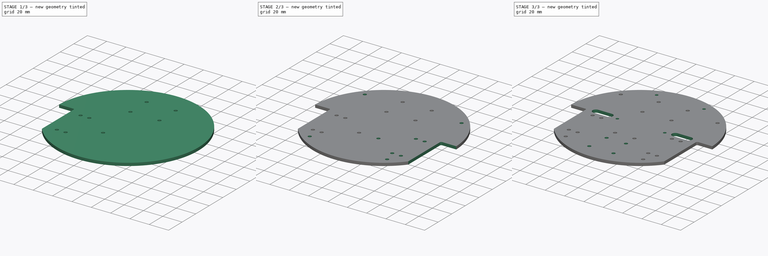
[diagram: build sequence overview — one tinted view per stage of 3, left to right]
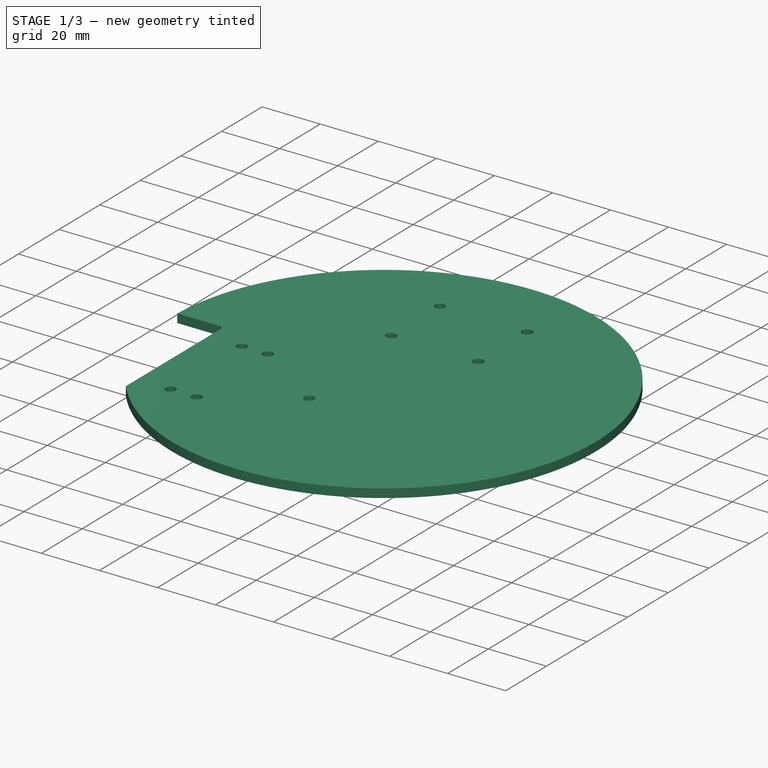
[diagram: stage 1 of 3 — iso view after this stage's code; geometry added in this stage tinted green]
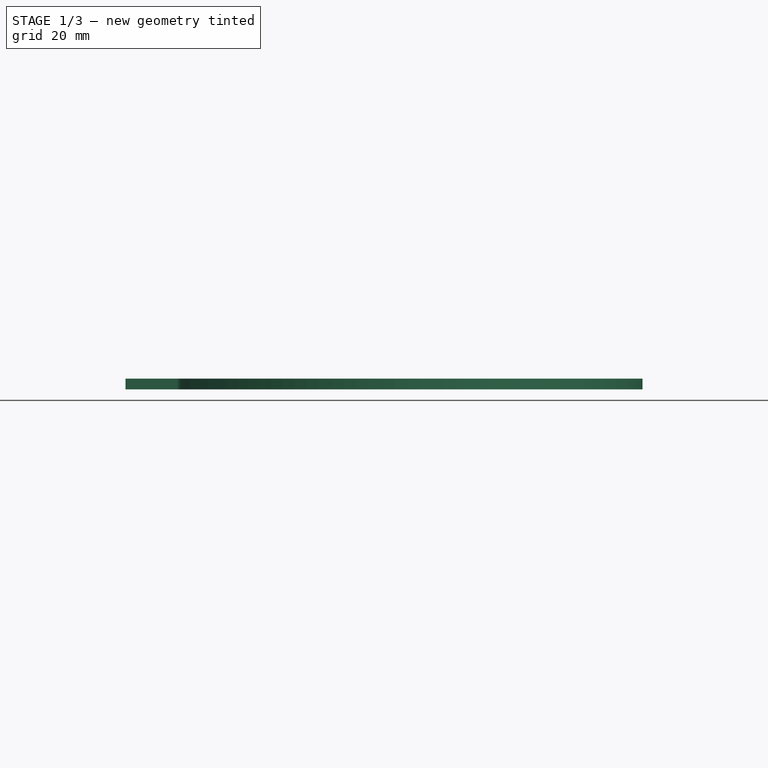
[diagram: stage 1 of 3 — front view after this stage's code; geometry added in this stage tinted green]
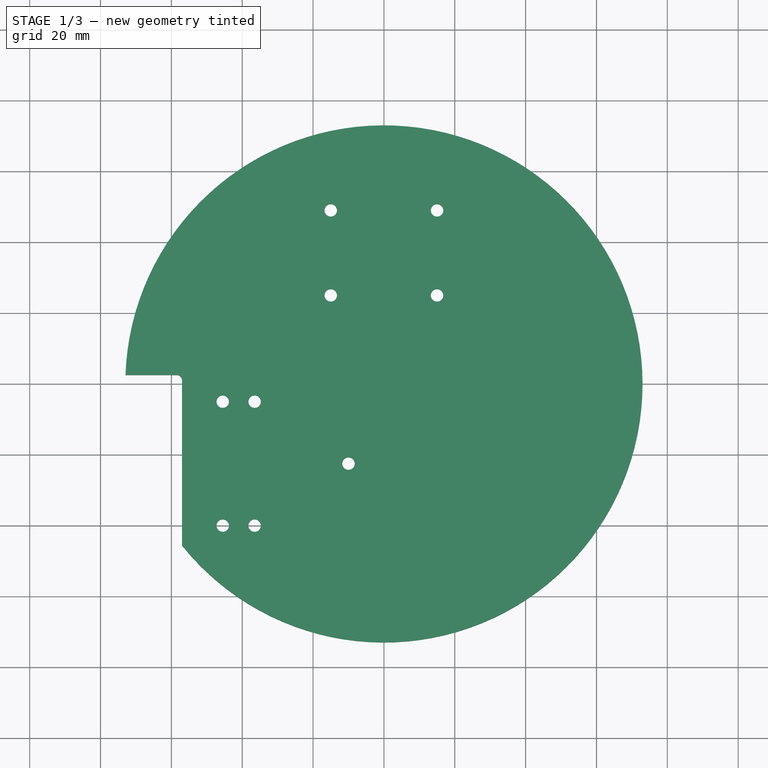
[diagram: stage 1 of 3 — top view after this stage's code; geometry added in this stage tinted green]
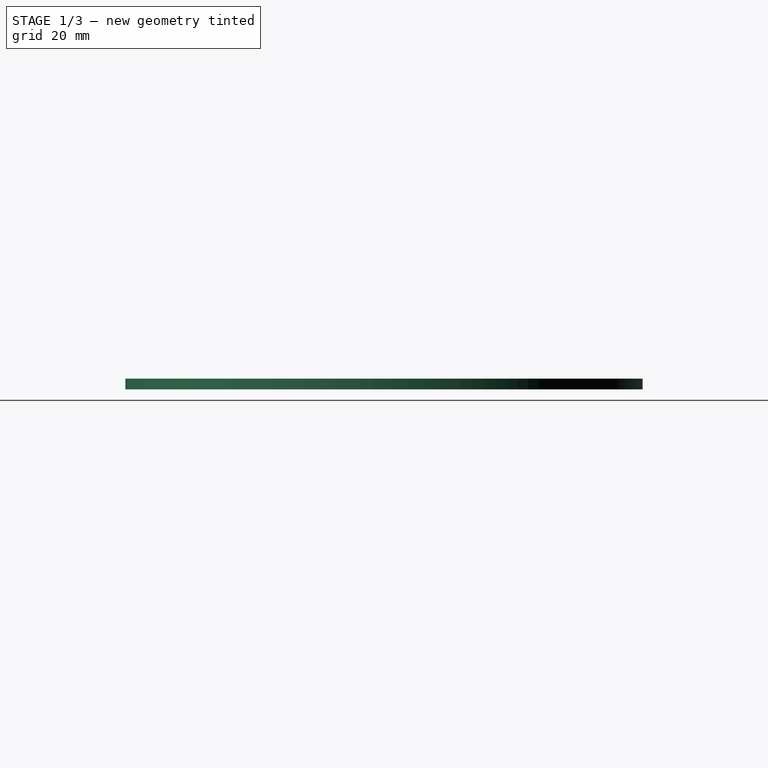
[diagram: stage 1 of 3 — right view after this stage's code; geometry added in this stage tinted green]
FCSTD DOCUMENT  (FreeCAD 0.17R13541 (Git))
Label: Minirobots_2-plate
License: All rights reserved
LicenseURL: http://en.wikipedia.org/wiki/All_rights_reserved
objects: Sketcher::SketchObject×5, PartDesign::Pocket×4, PartDesign::Pad×1, PartDesign::Mirrored×1, TechDraw::DrawSVGTemplate×1, PartDesign::Body×1, TechDraw::DrawViewPart×1, TechDraw::DrawPage×1
note: 17 computed .brp shape members not serialized (recipe doc carries the construction recipe); baked Part::Feature solids carry a one-line shape summary decoded from their .brp

FEATURE [Sketcher::SketchObject] Sketch
  MapMode = 5
  Support = -> [XY_Plane]
  sketch-geometry (12):
    g0: Circle CenterX=0 CenterY=0 CenterZ=0 NormalX=0 NormalY=0 NormalZ=1 AngleXU=0 Radius=73
    g1: Circle [constr] CenterX=0 CenterY=37 CenterZ=0 NormalX=0 NormalY=0 NormalZ=1 AngleXU=0 Radius=32
    g2: LineSegment [constr] StartX=-15 StartY=49 StartZ=0 EndX=15 EndY=49 EndZ=0
    g3: LineSegment [constr] StartX=15 StartY=49 StartZ=0 EndX=15 EndY=25 EndZ=0
    g4: LineSegment [constr] StartX=15 StartY=25 StartZ=0 EndX=-15 EndY=25 EndZ=0
    g5: LineSegment [constr] StartX=-15 StartY=25 StartZ=0 EndX=-15 EndY=49 EndZ=0
    g6: LineSegment [constr] StartX=-15 StartY=25 StartZ=0 EndX=0 EndY=37 EndZ=0
    g7: LineSegment [constr] StartX=0 StartY=37 StartZ=0 EndX=15 EndY=49 EndZ=0
    g8: Circle CenterX=-15 CenterY=49 CenterZ=0 NormalX=0 NormalY=0 NormalZ=1 AngleXU=0 Radius=1.75
    g9: Circle CenterX=15 CenterY=49 CenterZ=0 NormalX=0 NormalY=0 NormalZ=1 AngleXU=0 Radius=1.75
    g10: Circle CenterX=15 CenterY=25 CenterZ=0 NormalX=0 NormalY=0 NormalZ=1 AngleXU=0 Radius=1.75
    g11: Circle CenterX=-15 CenterY=25 CenterZ=0 NormalX=0 NormalY=0 NormalZ=1 AngleXU=0 Radius=1.75
  constraints (30):
    c: Coincident(g0,g-1)
    c: PointOnObject(g1,g-2)
    c: Radius(g0) = 73
    c: Radius(g1) = 32
    c: Coincident(g2,g3)
    c: Coincident(g3,g4)
    c: Coincident(g4,g5)
    c: Coincident(g5,g2)
    c: Horizontal(g2)
    c: Horizontal(g4)
    c: Vertical(g3)
    c: Vertical(g5)
    c: Symmetric(g2,g2,g-2)
    c: Coincident(g4,g6)
    c: Coincident(g6,g1)
    c: Coincident(g6,g7)
    c: Coincident(g7,g2)
    c: PointOnObject(g4,g7)
    c: Equal(g6,g7)
    c: DistanceY(g3,g3) = 24
    c: DistanceX(g4,g4) = 30
    c: DistanceY(g1) = 37
    c: Coincident(g8,g2)
    c: Coincident(g9,g2)
    c: Coincident(g10,g3)
    c: Coincident(g11,g4)
    c: Equal(g8,g11)
    c: Equal(g11,g10)
    c: Equal(g10,g9)
    c: Radius(g9) = 1.75
FEATURE [PartDesign::Pad] Pad
  Length = 3
  Length2 = 100
  Profile = -> Sketch
  Type = 0
FEATURE [Sketcher::SketchObject] Sketch001
  MapMode = 5
  Placement = pos=(0,0,3) rot=(0,0,1;0rad)
  Support = -> [Pad]
  sketch-geometry (19):
    g0: LineSegment StartX=-77 StartY=2.5 StartZ=0 EndX=-58.5 EndY=2.5 EndZ=0
    g1: LineSegment StartX=-57 StartY=1 StartZ=0 EndX=-57 EndY=-47.5 EndZ=0
    g2: LineSegment StartX=-57 StartY=-47.5 StartZ=0 EndX=-77 EndY=-47.5 EndZ=0
    g3: LineSegment StartX=-77 StartY=-47.5 StartZ=0 EndX=-77 EndY=2.5 EndZ=0
    g4: ArcOfCircle CenterX=-58.5 CenterY=1 CenterZ=0 NormalX=0 NormalY=0 NormalZ=1 AngleXU=0 Radius=1.5 StartAngle=0 EndAngle=1.5708
    g5: LineSegment [constr] StartX=-45.5 StartY=-5 StartZ=0 EndX=-36.5 EndY=-5 EndZ=0
    g6: LineSegment [constr] StartX=-36.5 StartY=-5 StartZ=0 EndX=-36.5 EndY=-40 EndZ=0
    g7: LineSegment [constr] StartX=-36.5 StartY=-40 StartZ=0 EndX=-45.5 EndY=-40 EndZ=0
    g8: LineSegment [constr] StartX=-45.5 StartY=-40 StartZ=0 EndX=-45.5 EndY=-5 EndZ=0
    g9: Circle CenterX=-45.5 CenterY=-5 CenterZ=0 NormalX=0 NormalY=0 NormalZ=1 AngleXU=0 Radius=1.75
    g10: Circle CenterX=-36.5 CenterY=-5 CenterZ=0 NormalX=0 NormalY=0 NormalZ=1 AngleXU=0 Radius=1.75
    g11: Circle CenterX=-45.5 CenterY=-40 CenterZ=0 NormalX=0 NormalY=0 NormalZ=1 AngleXU=0 Radius=1.75
    g12: Circle CenterX=-36.5 CenterY=-40 CenterZ=0 NormalX=0 NormalY=0 NormalZ=1 AngleXU=0 Radius=1.75
    g13: LineSegment [constr] StartX=-54.75 StartY=14.5 StartZ=0 EndX=-27.25 EndY=14.5 EndZ=0
    g14: LineSegment [constr] StartX=-27.25 StartY=14.5 StartZ=0 EndX=-27.25 EndY=-43 EndZ=0
    g15: LineSegment [constr] StartX=-27.25 StartY=-43 StartZ=0 EndX=-54.75 EndY=-43 EndZ=0
    g16: LineSegment [constr] StartX=-54.75 StartY=-43 StartZ=0 EndX=-54.75 EndY=14.5 EndZ=0
    g17: Circle [constr] CenterX=0 CenterY=0 CenterZ=0 NormalX=0 NormalY=0 NormalZ=1 AngleXU=0 Radius=70
    g18: Circle CenterX=-10 CenterY=-22.5 CenterZ=0 NormalX=0 NormalY=0 NormalZ=1 AngleXU=0 Radius=1.75
  constraints (51):
    c: Coincident(g1,g2)
    c: Coincident(g2,g3)
    c: Coincident(g3,g0)
    c: Horizontal(g0)
    c: Horizontal(g2)
    c: Vertical(g1)
    c: Vertical(g3)
    c: Tangent(g0,g4) = 1.5708
    c: Tangent(g1,g4) = 1.5708
    c: Coincident(g5,g6)
    c: Coincident(g6,g7)
    c: Coincident(g7,g8)
    c: Coincident(g8,g5)
    c: Horizontal(g5)
    c: Horizontal(g7)
    c: Vertical(g6)
    c: Vertical(g8)
    c: DistanceX(g5,g5) = 9
    c: DistanceY(g6,g6) = 35
    c: DistanceY(g3,g3) = 50
    c: Radius(g4) = 1.5
    c: DistanceX(g2,g2) = 20
    c: Coincident(g9,g5)
    c: Coincident(g10,g5)
    c: Coincident(g11,g7)
    c: Coincident(g12,g6)
    c: Equal(g9,g11)
    c: Equal(g11,g12)
    c: Equal(g10,g9)
    c: Radius(g10) = 1.75
    c: DistanceY(g5,g-1) = 5
    c: DistanceY(g1,g7) = 7.5
    c: DistanceX(g1,g-1) = 57
    c: DistanceX(g5) = -36.5
    c: Coincident(g13,g14)
    c: Coincident(g14,g15)
    c: Coincident(g15,g16)
    c: Coincident(g16,g13)
    c: Horizontal(g13)
    c: Horizontal(g15)
    c: Vertical(g14)
    c: Vertical(g16)
    c: DistanceX(g13,g13) = 27.5
    c: DistanceY(g14,g14) = 57.5
    c: Coincident(g17,g-1)
    c: Radius(g17) = 70
    c: DistanceX(g6,g14) = 9.25
    c: DistanceY(g6,g14) = -3
    c: Radius(g18) = 1.75
    c: DistanceY(g18,g5) = 17.5
    c: DistanceX(g18) = -10
FEATURE [PartDesign::Pocket] Pocket
  BaseFeature = -> Pad
  Length = 5
  Length2 = 100
  Profile = -> Sketch001
  Type = 1
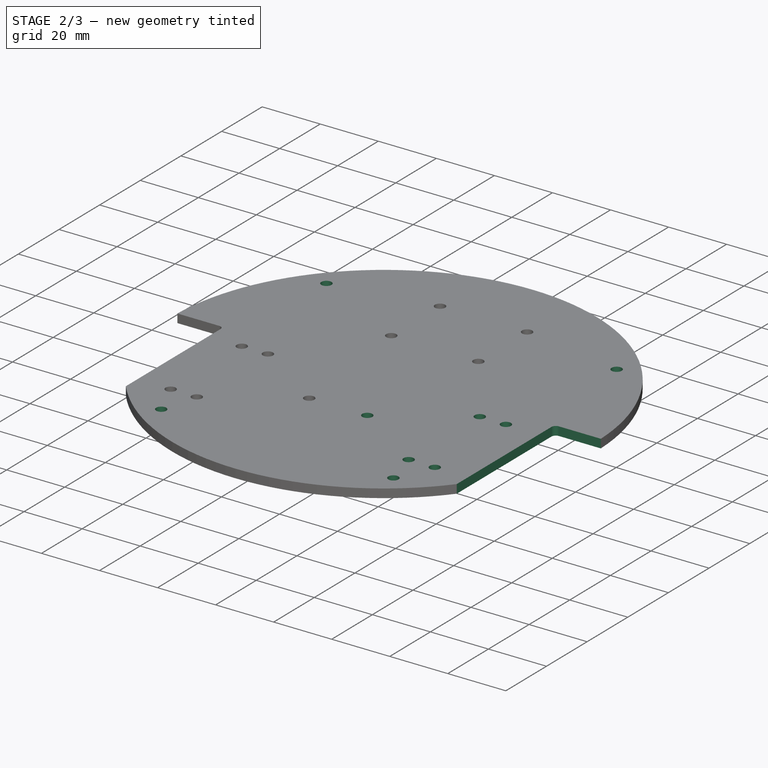
[diagram: stage 2 of 3 — iso view after this stage's code; geometry added in this stage tinted green]
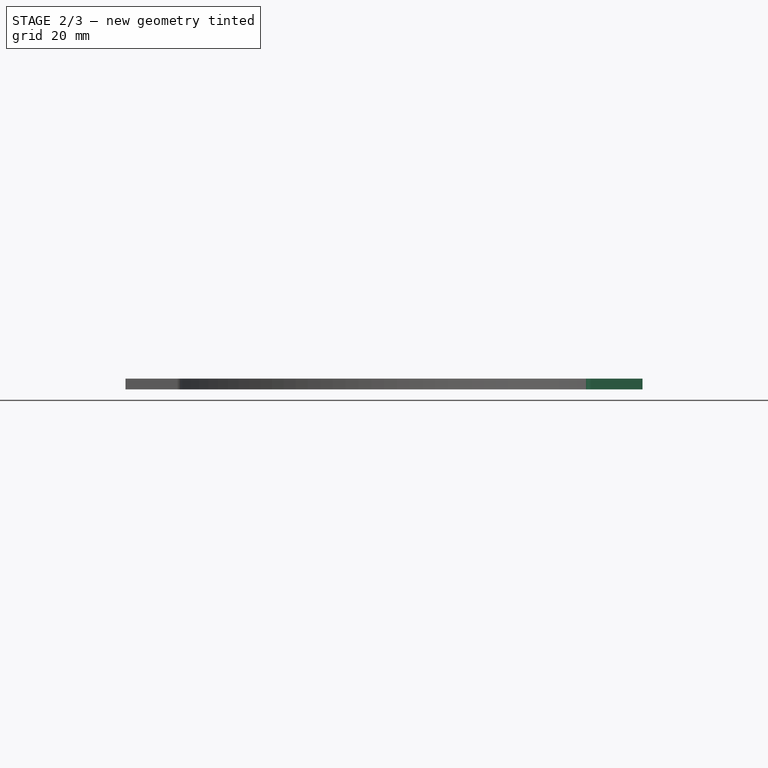
[diagram: stage 2 of 3 — front view after this stage's code; geometry added in this stage tinted green]
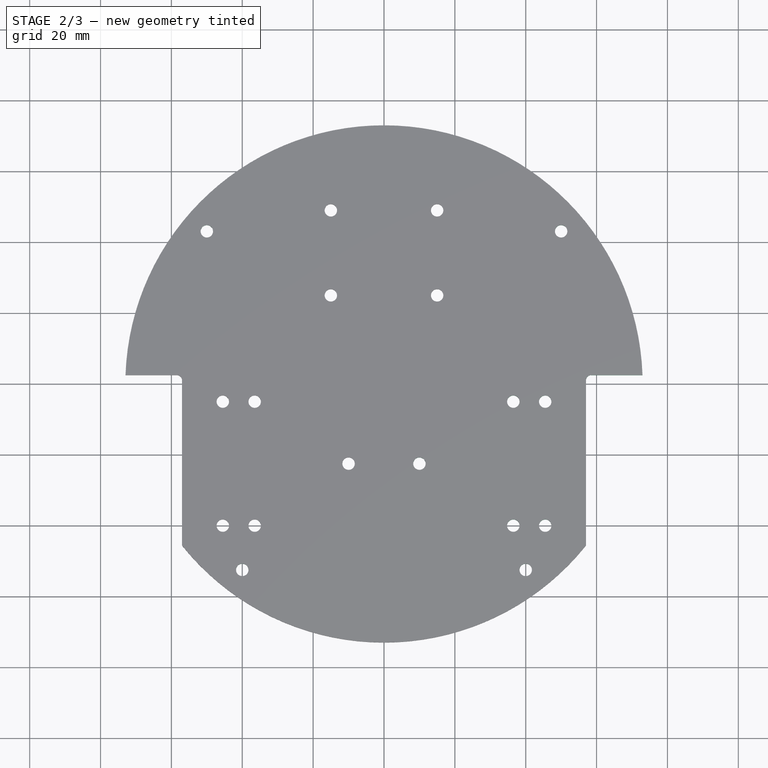
[diagram: stage 2 of 3 — top view after this stage's code; geometry added in this stage tinted green]
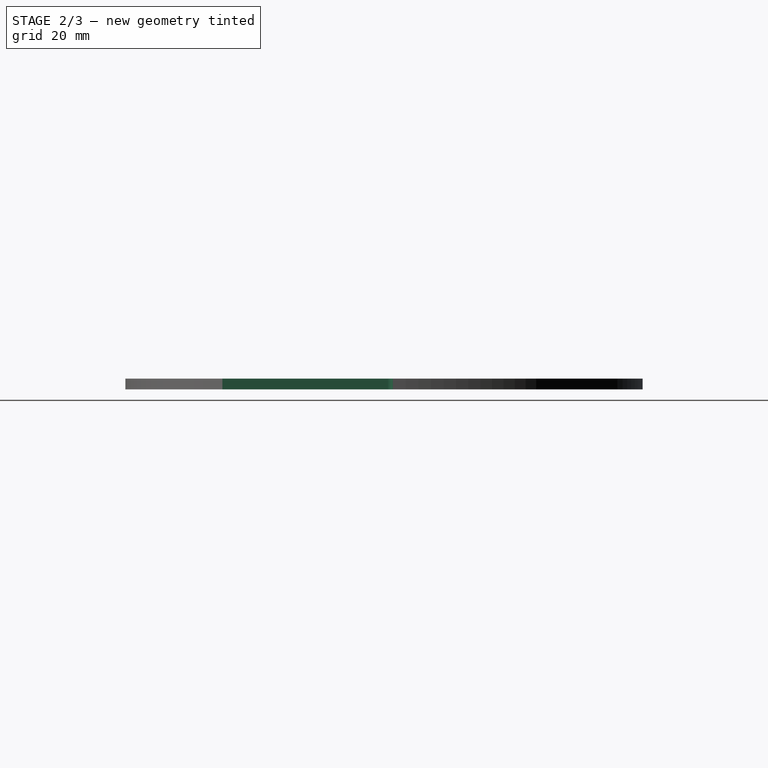
[diagram: stage 2 of 3 — right view after this stage's code; geometry added in this stage tinted green]
FEATURE [PartDesign::Mirrored] Mirrored
  BaseFeature = -> Pocket
  MirrorPlane = -> YZ_Plane
  Originals = -> [Pocket]
FEATURE [Sketcher::SketchObject] Sketch002
  MapMode = 5
  Placement = pos=(0,0,3) rot=(0,0,1;0rad)
  Support = -> [Mirrored]
  sketch-geometry (8):
    g0: Circle [constr] CenterX=0 CenterY=0 CenterZ=0 NormalX=0 NormalY=0 NormalZ=1 AngleXU=0 Radius=66
    g1: Circle CenterX=-40 CenterY=-52.4976 CenterZ=0 NormalX=0 NormalY=0 NormalZ=1 AngleXU=0 Radius=1.75
    g2: Circle CenterX=40 CenterY=-52.4976 CenterZ=0 NormalX=0 NormalY=0 NormalZ=1 AngleXU=0 Radius=1.75
    g3: Circle CenterX=-50 CenterY=43.0813 CenterZ=0 NormalX=0 NormalY=0 NormalZ=1 AngleXU=0 Radius=1.75
    g4: Circle CenterX=50 CenterY=43.0813 CenterZ=0 NormalX=0 NormalY=0 NormalZ=1 AngleXU=0 Radius=1.75
    g5: Circle [constr] CenterX=0 CenterY=0 CenterZ=0 NormalX=0 NormalY=0 NormalZ=1 AngleXU=0 Radius=71
    g6: Circle [constr] CenterX=0 CenterY=0 CenterZ=0 NormalX=0 NormalY=0 NormalZ=1 AngleXU=0 Radius=73
    g7: Circle [constr] CenterX=50 CenterY=43.0813 CenterZ=0 NormalX=0 NormalY=0 NormalZ=1 AngleXU=0 Radius=5
  constraints (20):
    c: Coincident(g0,g-1)
    c: PointOnObject(g1,g0)
    c: PointOnObject(g2,g0)
    c: PointOnObject(g3,g0)
    c: PointOnObject(g4,g0)
    c: Equal(g3,g1)
    c: Equal(g1,g2)
    c: Equal(g2,g4)
    c: Horizontal(g3,g4)
    c: Horizontal(g1,g2)
    c: Radius(g4) = 1.75
    c: DistanceX(g3,g4) = 100
    c: Radius(g0) = 66
    c: DistanceX(g1,g2) = 80
    c: Coincident(g5,g-1)
    c: Coincident(g6,g-1)
    c: Radius(g6) = 73
    c: Radius(g5) = 71
    c: Coincident(g7,g4)
    c: Radius(g7) = 5
FEATURE [PartDesign::Pocket] Pocket001
  BaseFeature = -> Mirrored
  Length = 5
  Length2 = 100
  Profile = -> Sketch002
  Type = 1
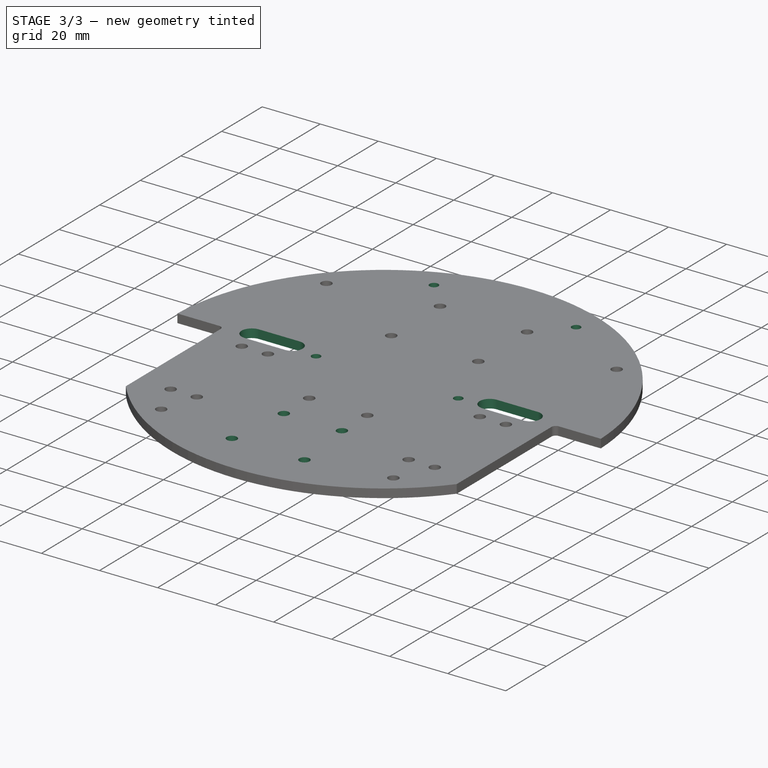
[diagram: stage 3 of 3 — iso view after this stage's code; geometry added in this stage tinted green]
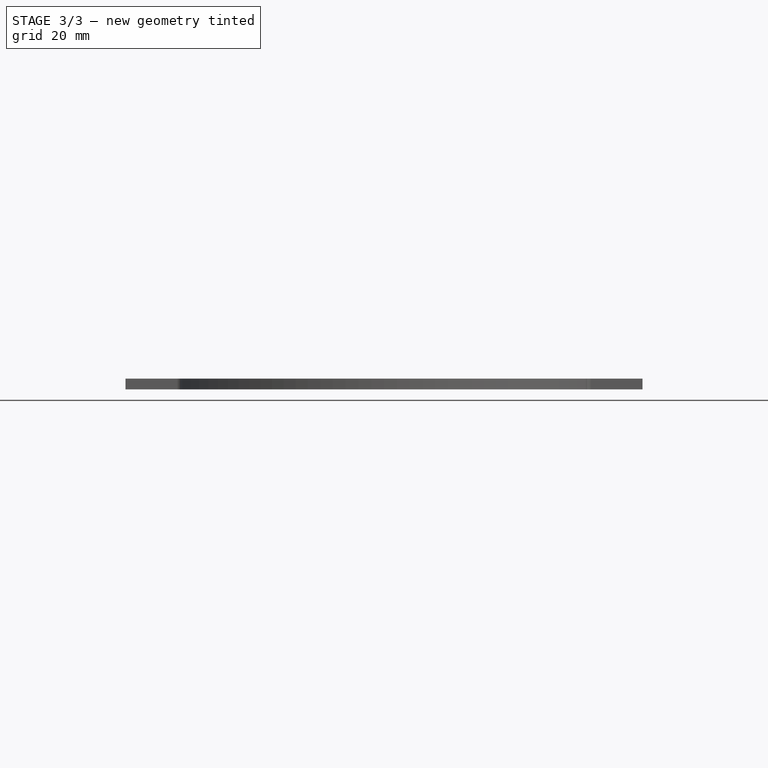
[diagram: stage 3 of 3 — front view after this stage's code; geometry added in this stage tinted green]
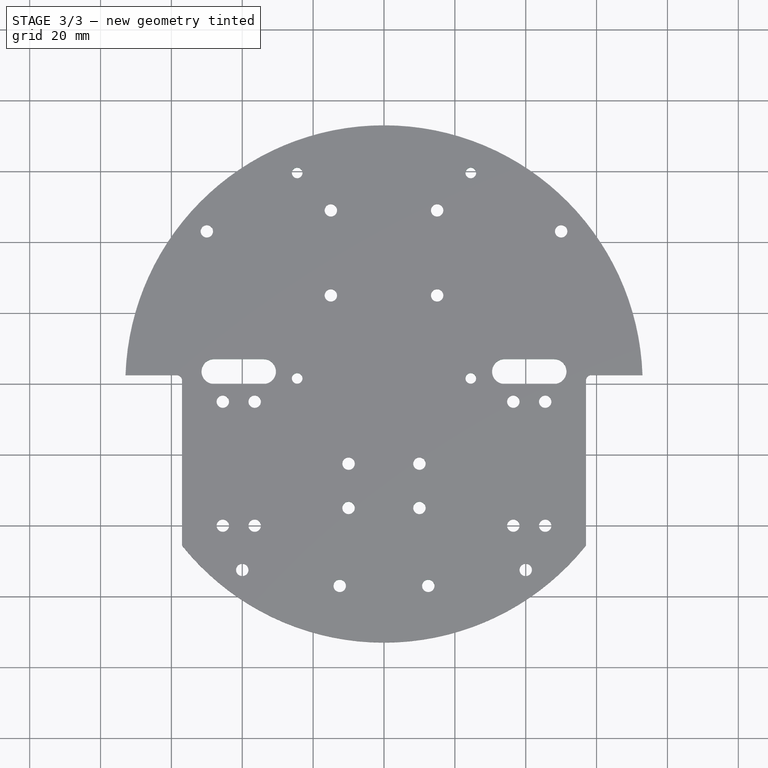
[diagram: stage 3 of 3 — top view after this stage's code; geometry added in this stage tinted green]
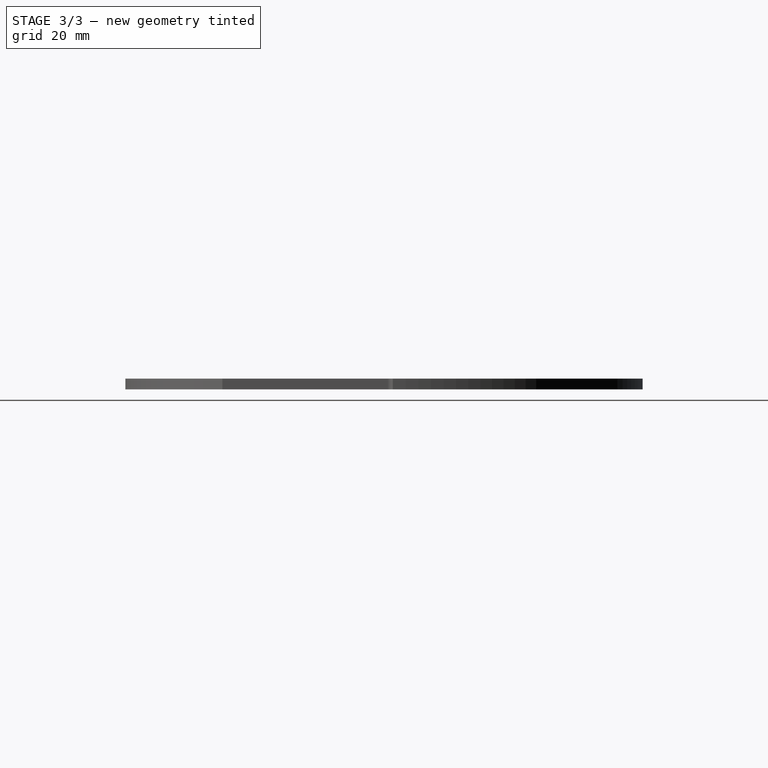
[diagram: stage 3 of 3 — right view after this stage's code; geometry added in this stage tinted green]
FEATURE [Sketcher::SketchObject] Sketch003
  MapMode = 5
  Placement = pos=(0,0,3) rot=(0,0,1;0rad)
  Support = -> [Pocket001]
  sketch-geometry (8):
    g0: ArcOfCircle CenterX=-48 CenterY=3.5 CenterZ=0 NormalX=0 NormalY=0 NormalZ=1 AngleXU=0 Radius=3.5 StartAngle=1.5708 EndAngle=4.71239
    g1: ArcOfCircle CenterX=-34 CenterY=3.5 CenterZ=0 NormalX=0 NormalY=0 NormalZ=1 AngleXU=0 Radius=3.5 StartAngle=4.71239 EndAngle=7.85398
    g2: LineSegment StartX=-48 StartY=0 StartZ=0 EndX=-34 EndY=0 EndZ=0
    g3: LineSegment StartX=-48 StartY=7 StartZ=0 EndX=-34 EndY=7 EndZ=0
    g4: ArcOfCircle CenterX=34 CenterY=3.5 CenterZ=0 NormalX=0 NormalY=0 NormalZ=1 AngleXU=0 Radius=3.5 StartAngle=1.5708 EndAngle=4.71239
    g5: ArcOfCircle CenterX=48 CenterY=3.5 CenterZ=0 NormalX=0 NormalY=0 NormalZ=1 AngleXU=0 Radius=3.5 StartAngle=4.71239 EndAngle=7.85398
    g6: LineSegment StartX=34 StartY=0 StartZ=0 EndX=48 EndY=0 EndZ=0
    g7: LineSegment StartX=34 StartY=7 StartZ=0 EndX=48 EndY=7 EndZ=0
  constraints (19):
    c: Tangent(g0,g3) = 1.5708
    c: Tangent(g0,g2) = -1.5708
    c: Tangent(g2,g1) = -1.5708
    c: Tangent(g3,g1) = 1.5708
    c: Horizontal(g2)
    c: Equal(g0,g1)
    c: Tangent(g4,g7) = 1.5708
    c: Tangent(g4,g6) = -1.5708
    c: Tangent(g6,g5) = -1.5708
    c: Tangent(g7,g5) = 1.5708
    c: Horizontal(g6)
    c: Equal(g4,g5)
    c: Symmetric(g1,g4,g-2)
    c: Equal(g3,g7)
    c: Equal(g1,g4)
    c: Radius(g5) = 3.5
    c: DistanceX(g7,g7) = 14
    c: DistanceX(g1,g4) = 68
    c: DistanceY(g4) = 3.5
FEATURE [PartDesign::Pocket] Pocket002
  BaseFeature = -> Pocket001
  Length = 5
  Length2 = 100
  Profile = -> Sketch003
  Type = 1
FEATURE [TechDraw::DrawSVGTemplate] Template
  Height = 210
  Orientation = 1
  Width = 297
FEATURE [Sketcher::SketchObject] Sketch004
  MapMode = 5
  Placement = pos=(0,0,3) rot=(0,0,1;0rad)
  Support = -> [Pocket002]
  sketch-geometry (17):
    g0: Circle CenterX=-12.5 CenterY=-57 CenterZ=0 NormalX=0 NormalY=0 NormalZ=1 AngleXU=0 Radius=1.75
    g1: Circle CenterX=12.5 CenterY=-57 CenterZ=0 NormalX=0 NormalY=0 NormalZ=1 AngleXU=0 Radius=1.75
    g2: LineSegment [constr] StartX=-28 StartY=63.0635 StartZ=0 EndX=28 EndY=63.0635 EndZ=0
    g3: LineSegment [constr] StartX=28 StartY=63.0635 StartZ=0 EndX=28 EndY=-21.9365 EndZ=0
    g4: LineSegment [constr] StartX=28 StartY=-21.9365 StartZ=0 EndX=-28 EndY=-21.9365 EndZ=0
    g5: LineSegment [constr] StartX=-28 StartY=-21.9365 StartZ=0 EndX=-28 EndY=63.0635 EndZ=0
    g6: Circle [constr] CenterX=0 CenterY=0 CenterZ=0 NormalX=0 NormalY=0 NormalZ=1 AngleXU=0 Radius=69
    g7: LineSegment [constr] StartX=-24.5 StartY=59.5635 StartZ=0 EndX=24.5 EndY=59.5635 EndZ=0
    g8: LineSegment [constr] StartX=24.5 StartY=59.5635 StartZ=0 EndX=24.5 EndY=1.56346 EndZ=0
    g9: LineSegment [constr] StartX=24.5 StartY=1.56346 StartZ=0 EndX=-24.5 EndY=1.56346 EndZ=0
    g10: LineSegment [constr] StartX=-24.5 StartY=1.56346 StartZ=0 EndX=-24.5 EndY=59.5635 EndZ=0
    g11: Circle CenterX=-24.5 CenterY=59.5635 CenterZ=0 NormalX=0 NormalY=0 NormalZ=1 AngleXU=0 Radius=1.5
    g12: Circle CenterX=24.5 CenterY=59.5635 CenterZ=0 NormalX=0 NormalY=0 NormalZ=1 AngleXU=0 Radius=1.5
    g13: Circle CenterX=-24.5 CenterY=1.56346 CenterZ=0 NormalX=0 NormalY=0 NormalZ=1 AngleXU=0 Radius=1.5
    g14: Circle CenterX=24.5 CenterY=1.56346 CenterZ=0 NormalX=0 NormalY=0 NormalZ=1 AngleXU=0 Radius=1.5
    g15: Circle CenterX=-10 CenterY=-35 CenterZ=0 NormalX=0 NormalY=0 NormalZ=1 AngleXU=0 Radius=1.75
    g16: Circle CenterX=10 CenterY=-35 CenterZ=0 NormalX=0 NormalY=0 NormalZ=1 AngleXU=0 Radius=1.75
  constraints (44):
    c: Equal(g0,g1)
    c: Symmetric(g0,g1,g-2)
    c: Radius(g0) = 1.75
    c: DistanceY(g1) = -57
    c: DistanceX(g0,g1) = 25
    c: Coincident(g2,g3)
    c: Coincident(g3,g4)
    c: Coincident(g4,g5)
    c: Coincident(g5,g2)
    c: Horizontal(g2)
    c: Horizontal(g4)
    c: Vertical(g3)
    c: Vertical(g5)
    c: DistanceX(g2,g2) = 56
    c: DistanceY(g3,g3) = 85
    c: Coincident(g6,g-1)
    c: PointOnObject(g2,g6)
    c: PointOnObject(g2,g6)
    c: Radius(g6) = 69
    c: Coincident(g7,g8)
    c: Coincident(g8,g9)
    c: Coincident(g9,g10)
    c: Coincident(g10,g7)
    c: Horizontal(g7)
    c: Horizontal(g9)
    c: Vertical(g8)
    c: Vertical(g10)
    c: Coincident(g11,g7)
    c: Coincident(g12,g7)
    c: Coincident(g14,g8)
    c: Equal(g11,g13)
    c: Equal(g13,g14)
    c: Equal(g14,g12)
    c: Radius(g12) = 1.5
    c: DistanceY(g8,g8) = 58
    c: DistanceX(g7,g7) = 49
    c: DistanceX(g7,g2) = 3.5
    c: DistanceY(g7,g2) = 3.5
    c: Coincident(g9,g13)
    c: Equal(g15,g16)
    c: Symmetric(g15,g16,g-2)
    c: Equal(g1,g16)
    c: DistanceX(g15,g16) = 20
    c: DistanceY(g16) = -35
FEATURE [PartDesign::Pocket] Pocket003
  BaseFeature = -> Pocket002
  Length = 5
  Length2 = 100
  Profile = -> Sketch004
  Type = 1
FEATURE [PartDesign::Body] Body
  Group = -> [Sketch,Pad,Sketch001,Pocket,Mirrored,Sketch002,Pocket001,Sketch003,Pocket002,Sketch004,Pocket003]
  Origin = -> Origin
  Tip = -> Pocket003
FEATURE [TechDraw::DrawViewPart] View
  CoarseView = false
  Direction = (0,0,1)
  Focus = 100
  HardHidden = false
  IsoCount = 0
  IsoHidden = false
  IsoVisible = false
  LockPosition = false
  Perspective = false
  Rotation = 0
  ScaleType = 0
  SeamHidden = false
  SeamVisible = false
  SmoothHidden = false
  SmoothVisible = false
  Source = -> [Pocket003]
  X = 148.5
  Y = 105
FEATURE [TechDraw::DrawPage] Page
  KeepUpdated = true
  ProjectionType = 0
  Template = -> Template
  Views = -> [View]
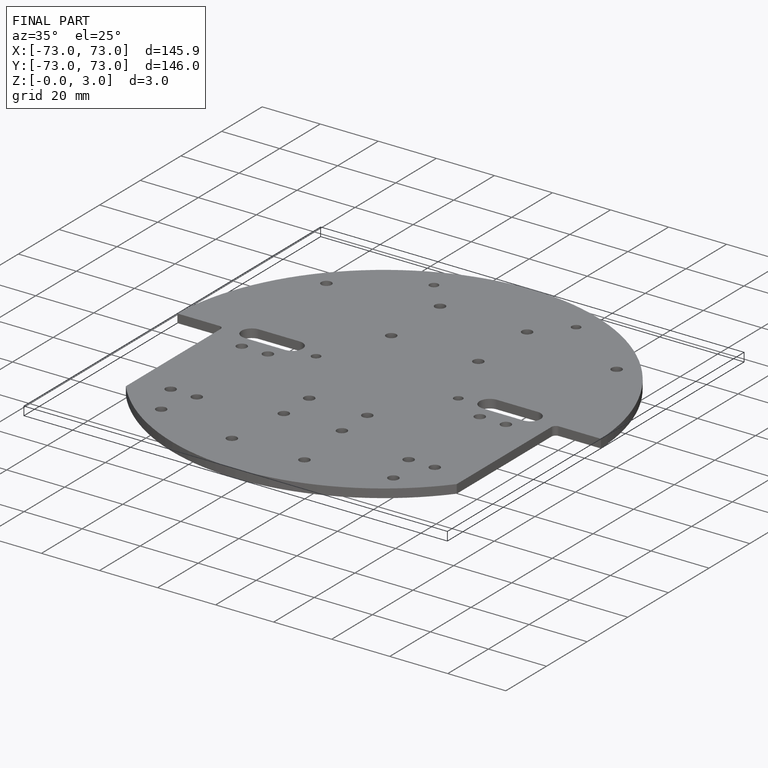
[diagram: finished part — iso view with bounding-box wireframe]
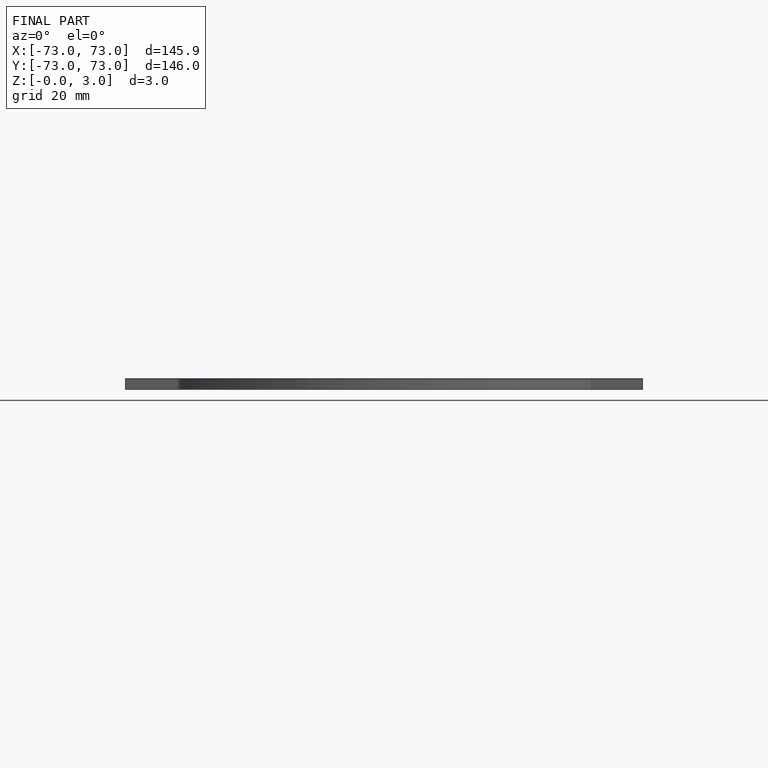
[diagram: finished part — front view with bounding-box wireframe]
